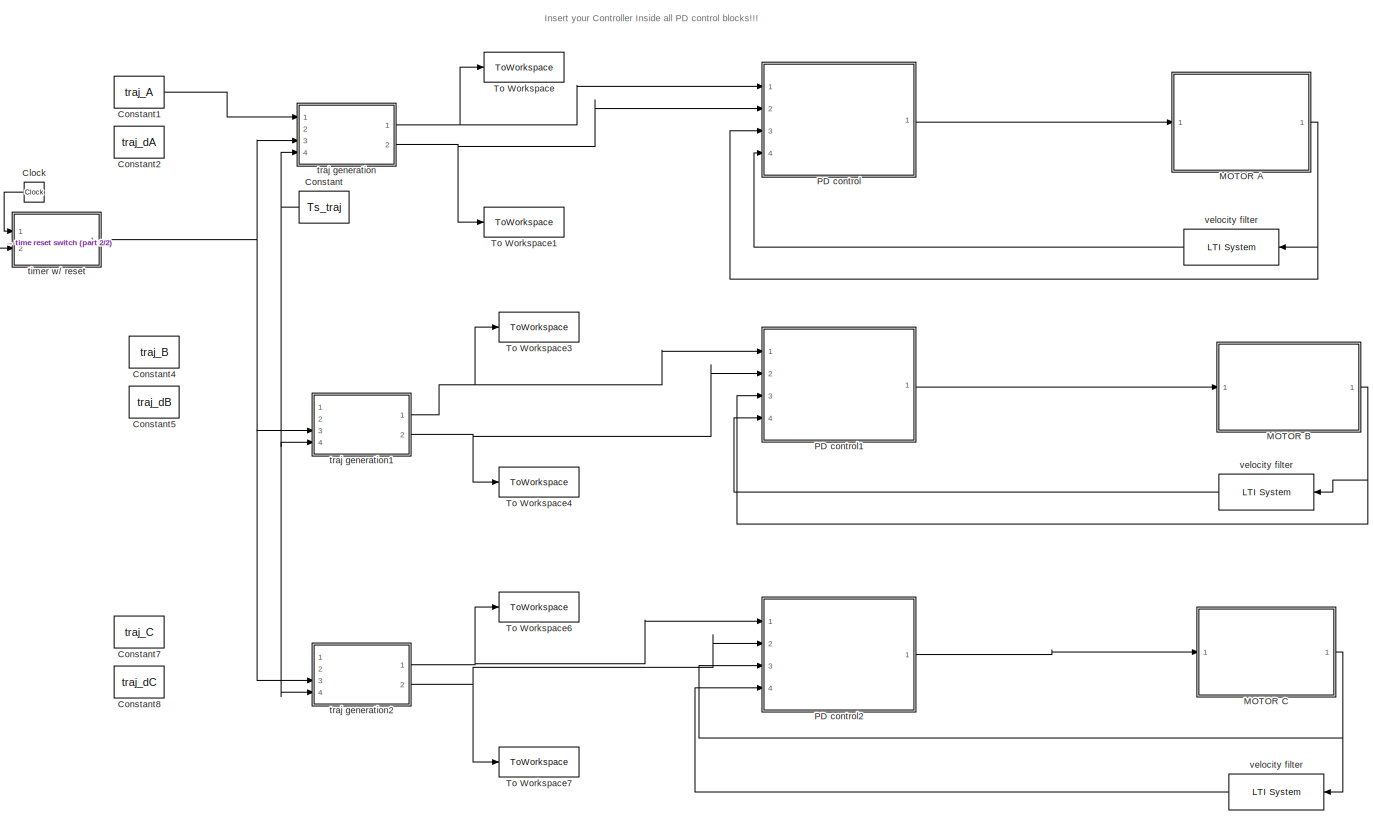
[diagram: root canvas - part 1/2, most of the canvas]
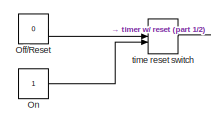
[diagram: root canvas - part 2/2, middle left region]
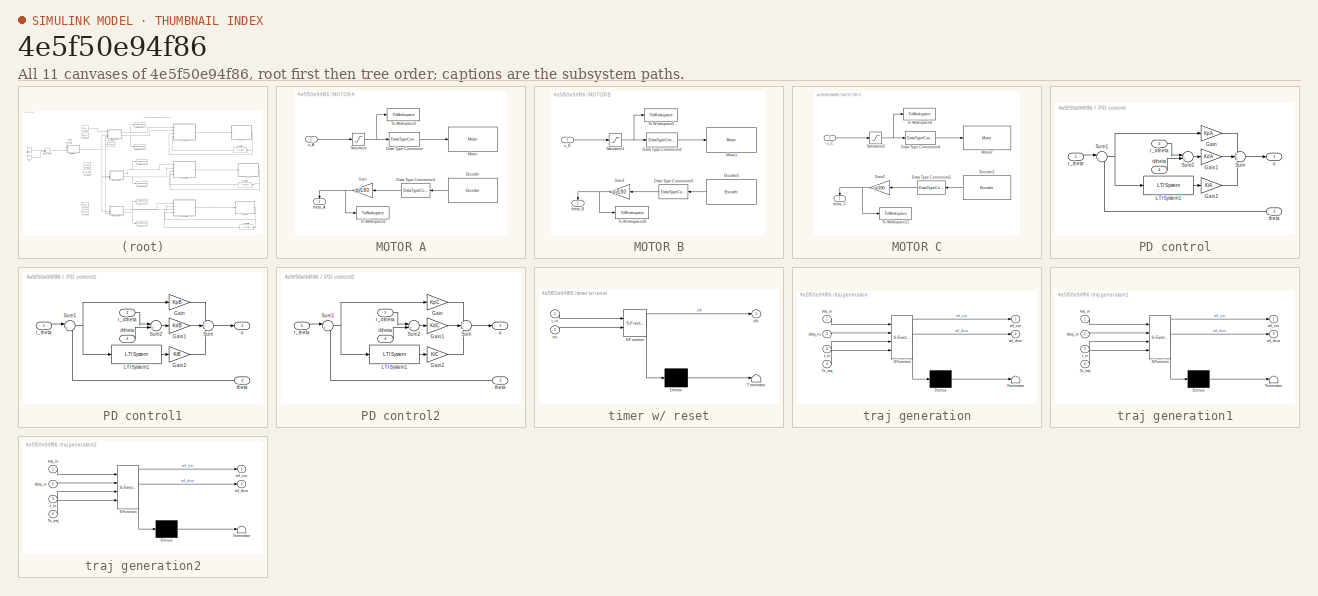
[diagram: thumbnail index - all 11 canvases of the model, root first then tree order]
MODEL slx_4e5f50e94f86
KIND model
BLOCK [Clock] Clock
BLOCK [Constant] Constant
  Value = Ts_traj
BLOCK [Constant] Constant1
  Value = traj_A
BLOCK [Constant] Constant2
  Value = traj_dA
BLOCK [Constant] Constant4
  Value = traj_B
BLOCK [Constant] Constant5
  Value = traj_dB
BLOCK [Constant] Constant7
  Value = traj_C
BLOCK [Constant] Constant8
  Value = traj_dC
BLOCK [SubSystem] MOTOR A
  Ports = [1, 1]
  RequestExecContextInheritance = off
BLOCK [DataTypeConversion] MOTOR A/Data Type Conversion
  OutDataTypeStr = int8
  RndMeth = Floor
  SaturateOnIntegerOverflow = off
BLOCK [DataTypeConversion] MOTOR A/Data Type Conversion1
  OutDataTypeStr = double
  RndMeth = Floor
  SaturateOnIntegerOverflow = off
BLOCK [Reference] MOTOR A/Encoder  REF=legonxtlib/Encoder
  Ports = [0, 1]
  SourceBlock = legonxtlib/Encoder
  SourceType = LEGO MINDSTORMS NXT Encoder
  opMode = No reset
  portNumber = A
  sampleTime = Ts
BLOCK [Gain] MOTOR A/Gain
  Gain = pi/180
  OutDataTypeStr = Inherit: Inherit via internal rule
  ParamDataTypeStr = Inherit: Inherit via internal rule
  SaturateOnIntegerOverflow = off
BLOCK [Reference] MOTOR A/Motor  REF=legonxtlib/Motor
  Ports = [1]
  SourceBlock = legonxtlib/Motor
  SourceType = LEGO MINDSTORMS NXT Motor
  sportNumber = A
  sstopAction = Brake
BLOCK [Saturate] MOTOR A/Saturation
  InputPortMap = u0
  LowerLimit = -100
  Ports = [1, 1]
  UpperLimit = 100
BLOCK [ToWorkspace] MOTOR A/To Workspace2
  FixptAsFi = on
  MaxDataPoints = inf
  Ports = [1]
  SampleTime = -1
  Save2DSignal = 3-D array (concatenate along third dimension)
  SaveFormat = Structure With Time
  VariableName = simout_u_A
BLOCK [ToWorkspace] MOTOR A/To Workspace9
  FixptAsFi = on
  MaxDataPoints = inf
  Ports = [1]
  SampleTime = -1
  Save2DSignal = 3-D array (concatenate along third dimension)
  SaveFormat = Structure With Time
  VariableName = simout_A
BLOCK [Outport] MOTOR A/theta_A
  IconDisplay = Port number
BLOCK [Inport] MOTOR A/u_A
  IconDisplay = Port number
BLOCK [SubSystem] MOTOR B
  Ports = [1, 1]
  RequestExecContextInheritance = off
BLOCK [DataTypeConversion] MOTOR B/Data Type Conversion2
  OutDataTypeStr = int8
  RndMeth = Floor
  SaturateOnIntegerOverflow = off
BLOCK [DataTypeConversion] MOTOR B/Data Type Conversion3
  OutDataTypeStr = double
  RndMeth = Floor
  SaturateOnIntegerOverflow = off
BLOCK [Reference] MOTOR B/Encoder1  REF=legonxtlib/Encoder
  Ports = [0, 1]
  SourceBlock = legonxtlib/Encoder
  SourceType = LEGO MINDSTORMS NXT Encoder
  opMode = No reset
  portNumber = B
  sampleTime = Ts
BLOCK [Gain] MOTOR B/Gain1
  Gain = pi/180
  OutDataTypeStr = Inherit: Inherit via internal rule
  ParamDataTypeStr = Inherit: Inherit via internal rule
  SaturateOnIntegerOverflow = off
BLOCK [Reference] MOTOR B/Motor1  REF=legonxtlib/Motor
  Ports = [1]
  SourceBlock = legonxtlib/Motor
  SourceType = LEGO MINDSTORMS NXT Motor
  sportNumber = B
  sstopAction = Brake
BLOCK [Saturate] MOTOR B/Saturation1
  InputPortMap = u0
  LowerLimit = -100
  Ports = [1, 1]
  UpperLimit = 100
BLOCK [ToWorkspace] MOTOR B/To Workspace10
  FixptAsFi = on
  MaxDataPoints = inf
  Ports = [1]
  SampleTime = -1
  Save2DSignal = 3-D array (concatenate along third dimension)
  SaveFormat = Structure With Time
  VariableName = simout_B
BLOCK [ToWorkspace] MOTOR B/To Workspace5
  FixptAsFi = on
  MaxDataPoints = inf
  Ports = [1]
  SampleTime = -1
  Save2DSignal = 3-D array (concatenate along third dimension)
  SaveFormat = Structure With Time
  VariableName = simout_u_B
BLOCK [Outport] MOTOR B/theta_B
  IconDisplay = Port number
BLOCK [Inport] MOTOR B/u_B
  IconDisplay = Port number
BLOCK [SubSystem] MOTOR C
  Ports = [1, 1]
  RequestExecContextInheritance = off
BLOCK [DataTypeConversion] MOTOR C/Data Type Conversion4
  OutDataTypeStr = int8
  RndMeth = Floor
  SaturateOnIntegerOverflow = off
BLOCK [DataTypeConversion] MOTOR C/Data Type Conversion5
  OutDataTypeStr = double
  RndMeth = Floor
  SaturateOnIntegerOverflow = off
BLOCK [Reference] MOTOR C/Encoder2  REF=legonxtlib/Encoder
  Ports = [0, 1]
  SourceBlock = legonxtlib/Encoder
  SourceType = LEGO MINDSTORMS NXT Encoder
  opMode = No reset
  portNumber = C
  sampleTime = Ts
BLOCK [Gain] MOTOR C/Gain2
  Gain = pi/180
  OutDataTypeStr = Inherit: Inherit via internal rule
  ParamDataTypeStr = Inherit: Inherit via internal rule
  SaturateOnIntegerOverflow = off
BLOCK [Reference] MOTOR C/Motor2  REF=legonxtlib/Motor
  Ports = [1]
  SourceBlock = legonxtlib/Motor
  SourceType = LEGO MINDSTORMS NXT Motor
  sportNumber = C
  sstopAction = Brake
BLOCK [Saturate] MOTOR C/Saturation2
  InputPortMap = u0
  LowerLimit = -100
  Ports = [1, 1]
  UpperLimit = 100
BLOCK [ToWorkspace] MOTOR C/To Workspace11
  FixptAsFi = on
  MaxDataPoints = inf
  Ports = [1]
  SampleTime = -1
  Save2DSignal = 3-D array (concatenate along third dimension)
  SaveFormat = Structure With Time
  VariableName = simout_C
BLOCK [ToWorkspace] MOTOR C/To Workspace8
  FixptAsFi = on
  MaxDataPoints = inf
  Ports = [1]
  SampleTime = -1
  Save2DSignal = 3-D array (concatenate along third dimension)
  SaveFormat = Structure With Time
  VariableName = simout_u_C
BLOCK [Outport] MOTOR C/theta_C
  IconDisplay = Port number
BLOCK [Inport] MOTOR C/u_C
  IconDisplay = Port number
BLOCK [Constant] Off//Reset
  Value = 0
BLOCK [Constant] On
BLOCK [SubSystem] PD control
  Ports = [4, 1]
  RequestExecContextInheritance = off
BLOCK [Gain] PD control/Gain
  Gain = KpA
  OutDataTypeStr = Inherit: Inherit via internal rule
  ParamDataTypeStr = Inherit: Inherit via internal rule
  SaturateOnIntegerOverflow = off
BLOCK [Gain] PD control/Gain1
  Gain = KdA
  OutDataTypeStr = Inherit: Inherit via internal rule
  ParamDataTypeStr = Inherit: Inherit via internal rule
  SaturateOnIntegerOverflow = off
BLOCK [Gain] PD control/Gain2
  Gain = KiA
  OutDataTypeStr = Inherit: Inherit via internal rule
  ParamDataTypeStr = Inherit: Inherit via internal rule
  SaturateOnIntegerOverflow = off
BLOCK [Reference] PD control/LTI System1  REF=cstblocks/LTI System
  IC = []
  Ports = [1, 1]
  SourceBlock = cstblocks/LTI System
  SourceType = LTI Block
  sys = itf
BLOCK [Sum] PD control/Sum
  IconShape = round
  InputSameDT = off
  Inputs = +++
  OutDataTypeStr = Inherit: Inherit via internal rule
  Ports = [3, 1]
  SaturateOnIntegerOverflow = off
BLOCK [Sum] PD control/Sum1
  IconShape = round
  InputSameDT = off
  Inputs = |+-
  OutDataTypeStr = Inherit: Inherit via internal rule
  Ports = [2, 1]
  SaturateOnIntegerOverflow = off
BLOCK [Sum] PD control/Sum2
  IconShape = round
  InputSameDT = off
  Inputs = |+-
  OutDataTypeStr = Inherit: Inherit via internal rule
  Ports = [2, 1]
  SaturateOnIntegerOverflow = off
BLOCK [Inport] PD control/dtheta
  IconDisplay = Port number
  Port = 4
BLOCK [Inport] PD control/r_dtheta
  IconDisplay = Port number
  Port = 2
BLOCK [Inport] PD control/r_theta
  IconDisplay = Port number
BLOCK [Inport] PD control/theta
  IconDisplay = Port number
  Port = 3
BLOCK [Outport] PD control/u
  IconDisplay = Port number
BLOCK [SubSystem] PD control1
  Ports = [4, 1]
  RequestExecContextInheritance = off
BLOCK [Gain] PD control1/Gain
  Gain = KpB
  OutDataTypeStr = Inherit: Inherit via internal rule
  ParamDataTypeStr = Inherit: Inherit via internal rule
  SaturateOnIntegerOverflow = off
BLOCK [Gain] PD control1/Gain1
  Gain = KdB
  OutDataTypeStr = Inherit: Inherit via internal rule
  ParamDataTypeStr = Inherit: Inherit via internal rule
  SaturateOnIntegerOverflow = off
BLOCK [Gain] PD control1/Gain2
  Gain = KiB
  OutDataTypeStr = Inherit: Inherit via internal rule
  ParamDataTypeStr = Inherit: Inherit via internal rule
  SaturateOnIntegerOverflow = off
BLOCK [Reference] PD control1/LTI System1  REF=cstblocks/LTI System
  IC = []
  Ports = [1, 1]
  SourceBlock = cstblocks/LTI System
  SourceType = LTI Block
  sys = itf
BLOCK [Sum] PD control1/Sum
  IconShape = round
  InputSameDT = off
  Inputs = +++
  OutDataTypeStr = Inherit: Inherit via internal rule
  Ports = [3, 1]
  SaturateOnIntegerOverflow = off
BLOCK [Sum] PD control1/Sum1
  IconShape = round
  InputSameDT = off
  Inputs = |+-
  OutDataTypeStr = Inherit: Inherit via internal rule
  Ports = [2, 1]
  SaturateOnIntegerOverflow = off
BLOCK [Sum] PD control1/Sum2
  IconShape = round
  InputSameDT = off
  Inputs = |+-
  OutDataTypeStr = Inherit: Inherit via internal rule
  Ports = [2, 1]
  SaturateOnIntegerOverflow = off
BLOCK [Inport] PD control1/dtheta
  IconDisplay = Port number
  Port = 4
BLOCK [Inport] PD control1/r_dtheta
  IconDisplay = Port number
  Port = 2
BLOCK [Inport] PD control1/r_theta
  IconDisplay = Port number
BLOCK [Inport] PD control1/theta
  IconDisplay = Port number
  Port = 3
BLOCK [Outport] PD control1/u
  IconDisplay = Port number
BLOCK [SubSystem] PD control2
  Ports = [4, 1]
  RequestExecContextInheritance = off
BLOCK [Gain] PD control2/Gain
  Gain = KpC
  OutDataTypeStr = Inherit: Inherit via internal rule
  ParamDataTypeStr = Inherit: Inherit via internal rule
  SaturateOnIntegerOverflow = off
BLOCK [Gain] PD control2/Gain1
  Gain = KdC
  OutDataTypeStr = Inherit: Inherit via internal rule
  ParamDataTypeStr = Inherit: Inherit via internal rule
  SaturateOnIntegerOverflow = off
BLOCK [Gain] PD control2/Gain2
  Gain = KiC
  OutDataTypeStr = Inherit: Inherit via internal rule
  ParamDataTypeStr = Inherit: Inherit via internal rule
  SaturateOnIntegerOverflow = off
BLOCK [Reference] PD control2/LTI System1  REF=cstblocks/LTI System
  IC = []
  Ports = [1, 1]
  SourceBlock = cstblocks/LTI System
  SourceType = LTI Block
  sys = itf
BLOCK [Sum] PD control2/Sum
  IconShape = round
  InputSameDT = off
  Inputs = +++
  OutDataTypeStr = Inherit: Inherit via internal rule
  Ports = [3, 1]
  SaturateOnIntegerOverflow = off
BLOCK [Sum] PD control2/Sum1
  IconShape = round
  InputSameDT = off
  Inputs = |+-
  OutDataTypeStr = Inherit: Inherit via internal rule
  Ports = [2, 1]
  SaturateOnIntegerOverflow = off
BLOCK [Sum] PD control2/Sum2
  IconShape = round
  InputSameDT = off
  Inputs = |+-
  OutDataTypeStr = Inherit: Inherit via internal rule
  Ports = [2, 1]
  SaturateOnIntegerOverflow = off
BLOCK [Inport] PD control2/dtheta
  IconDisplay = Port number
  Port = 4
BLOCK [Inport] PD control2/r_dtheta
  IconDisplay = Port number
  Port = 2
BLOCK [Inport] PD control2/r_theta
  IconDisplay = Port number
BLOCK [Inport] PD control2/theta
  IconDisplay = Port number
  Port = 3
BLOCK [Outport] PD control2/u
  IconDisplay = Port number
BLOCK [ToWorkspace] To Workspace
  FixptAsFi = on
  MaxDataPoints = inf
  Ports = [1]
  SampleTime = -1
  Save2DSignal = 3-D array (concatenate along third dimension)
  SaveFormat = Structure With Time
  VariableName = simout_ref_A
BLOCK [ToWorkspace] To Workspace1
  FixptAsFi = on
  MaxDataPoints = inf
  Ports = [1]
  SampleTime = -1
  Save2DSignal = 3-D array (concatenate along third dimension)
  SaveFormat = Structure With Time
  VariableName = simout_ref_dA
BLOCK [ToWorkspace] To Workspace3
  FixptAsFi = on
  MaxDataPoints = inf
  Ports = [1]
  SampleTime = -1
  Save2DSignal = 3-D array (concatenate along third dimension)
  SaveFormat = Structure With Time
  VariableName = simout_ref_B
BLOCK [ToWorkspace] To Workspace4
  FixptAsFi = on
  MaxDataPoints = inf
  Ports = [1]
  SampleTime = -1
  Save2DSignal = 3-D array (concatenate along third dimension)
  SaveFormat = Structure With Time
  VariableName = simout_ref_dB
BLOCK [ToWorkspace] To Workspace6
  FixptAsFi = on
  MaxDataPoints = inf
  Ports = [1]
  SampleTime = -1
  Save2DSignal = 3-D array (concatenate along third dimension)
  SaveFormat = Structure With Time
  VariableName = simout_ref_C
BLOCK [ToWorkspace] To Workspace7
  FixptAsFi = on
  MaxDataPoints = inf
  Ports = [1]
  SampleTime = -1
  Save2DSignal = 3-D array (concatenate along third dimension)
  SaveFormat = Structure With Time
  VariableName = simout_ref_dC
BLOCK [ManualSwitch] time reset switch
BLOCK [SubSystem] timer w// reset
  ErrorFcn = Stateflow.Translate.translate
  PermitHierarchicalResolution = ExplicitOnly
  Ports = [2, 1]
  RequestExecContextInheritance = off
  SFBlockType = MATLAB Function
  TreatAsAtomicUnit = on
BLOCK [Demux] timer w// reset/ Demux 
  Outputs = 1
  Ports = [1, 1]
BLOCK [S-Function] timer w// reset/ SFunction 
  EnableBusSupport = on
  FunctionName = sf_sfun
  PortCounts = [2 2]
  Ports = [2, 2]
  Tag = Stateflow S-Function Lab2atemplatev2 3
BLOCK [Terminator] timer w// reset/ Terminator 
BLOCK [Outport] timer w// reset/clk
  IconDisplay = Port number
BLOCK [Inport] timer w// reset/rst
  IconDisplay = Port number
  Port = 2
BLOCK [Inport] timer w// reset/t_in
  IconDisplay = Port number
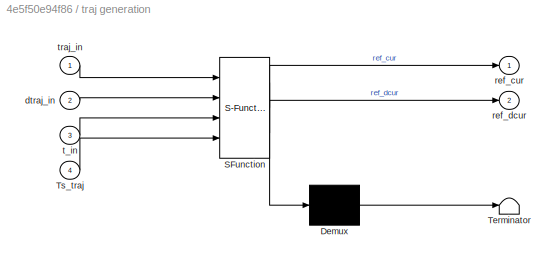
BLOCK [SubSystem] traj generation
  ErrorFcn = Stateflow.Translate.translate
  PermitHierarchicalResolution = ExplicitOnly
  Ports = [4, 2]
  RequestExecContextInheritance = off
  SFBlockType = MATLAB Function
  TreatAsAtomicUnit = on
BLOCK [Demux] traj generation/ Demux 
  Outputs = 1
  Ports = [1, 1]
BLOCK [S-Function] traj generation/ SFunction 
  EnableBusSupport = on
  FunctionName = sf_sfun
  PortCounts = [4 3]
  Ports = [4, 3]
  Tag = Stateflow S-Function Lab2atemplatev2 4
BLOCK [Terminator] traj generation/ Terminator 
BLOCK [Inport] traj generation/Ts_traj
  IconDisplay = Port number
  Port = 4
BLOCK [Inport] traj generation/dtraj_in
  IconDisplay = Port number
  Port = 2
BLOCK [Outport] traj generation/ref_cur
  IconDisplay = Port number
BLOCK [Outport] traj generation/ref_dcur
  IconDisplay = Port number
  Port = 2
BLOCK [Inport] traj generation/t_in
  IconDisplay = Port number
  Port = 3
BLOCK [Inport] traj generation/traj_in
  IconDisplay = Port number
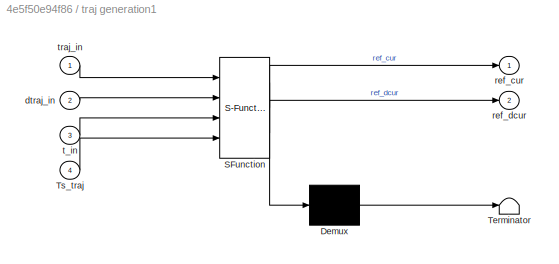
BLOCK [SubSystem] traj generation1
  ErrorFcn = Stateflow.Translate.translate
  PermitHierarchicalResolution = ExplicitOnly
  Ports = [4, 2]
  RequestExecContextInheritance = off
  SFBlockType = MATLAB Function
  TreatAsAtomicUnit = on
BLOCK [Demux] traj generation1/ Demux 
  Outputs = 1
  Ports = [1, 1]
BLOCK [S-Function] traj generation1/ SFunction 
  EnableBusSupport = on
  FunctionName = sf_sfun
  PortCounts = [4 3]
  Ports = [4, 3]
  Tag = Stateflow S-Function Lab2atemplatev2 1
BLOCK [Terminator] traj generation1/ Terminator 
BLOCK [Inport] traj generation1/Ts_traj
  IconDisplay = Port number
  Port = 4
BLOCK [Inport] traj generation1/dtraj_in
  IconDisplay = Port number
  Port = 2
BLOCK [Outport] traj generation1/ref_cur
  IconDisplay = Port number
BLOCK [Outport] traj generation1/ref_dcur
  IconDisplay = Port number
  Port = 2
BLOCK [Inport] traj generation1/t_in
  IconDisplay = Port number
  Port = 3
BLOCK [Inport] traj generation1/traj_in
  IconDisplay = Port number
BLOCK [SubSystem] traj generation2
  ErrorFcn = Stateflow.Translate.translate
  PermitHierarchicalResolution = ExplicitOnly
  Ports = [4, 2]
  RequestExecContextInheritance = off
  SFBlockType = MATLAB Function
  TreatAsAtomicUnit = on
BLOCK [Demux] traj generation2/ Demux 
  Outputs = 1
  Ports = [1, 1]
BLOCK [S-Function] traj generation2/ SFunction 
  EnableBusSupport = on
  FunctionName = sf_sfun
  PortCounts = [4 3]
  Ports = [4, 3]
  Tag = Stateflow S-Function Lab2atemplatev2 2
BLOCK [Terminator] traj generation2/ Terminator 
BLOCK [Inport] traj generation2/Ts_traj
  IconDisplay = Port number
  Port = 4
BLOCK [Inport] traj generation2/dtraj_in
  IconDisplay = Port number
  Port = 2
BLOCK [Outport] traj generation2/ref_cur
  IconDisplay = Port number
BLOCK [Outport] traj generation2/ref_dcur
  IconDisplay = Port number
  Port = 2
BLOCK [Inport] traj generation2/t_in
  IconDisplay = Port number
  Port = 3
BLOCK [Inport] traj generation2/traj_in
  IconDisplay = Port number
BLOCK [Reference] velocity filter  REF=cstblocks/LTI System
  IC = []
  Ports = [1, 1]
  SourceBlock = cstblocks/LTI System
  SourceType = LTI Block
  sys = dttf
BLOCK [Reference] velocity filter    REF=cstblocks/LTI System
  IC = []
  Ports = [1, 1]
  SourceBlock = cstblocks/LTI System
  SourceType = LTI Block
  sys = dttf
BLOCK [Reference] velocity filter       REF=cstblocks/LTI System
  IC = []
  Ports = [1, 1]
  SourceBlock = cstblocks/LTI System
  SourceType = LTI Block
  sys = dttf
ANNOTATION (root): Insert your Controller Inside all PD control blocks!!!
LINE Clock:1 -> timer w// reset:1
LINE Constant1:1 -> traj generation:1
NET Constant:1 -> traj generation1:4, traj generation2:4, traj generation:4
LINE MOTOR A/Data Type Conversion1:1 -> MOTOR A/Gain:1
LINE MOTOR A/Data Type Conversion:1 -> MOTOR A/Motor:1
LINE MOTOR A/Encoder:1 -> MOTOR A/Data Type Conversion1:1
NET MOTOR A/Gain:1 -> MOTOR A/To Workspace9:1, MOTOR A/theta_A:1
NET MOTOR A/Saturation:1 -> MOTOR A/Data Type Conversion:1, MOTOR A/To Workspace2:1
LINE MOTOR A/u_A:1 -> MOTOR A/Saturation:1
NET MOTOR A:1 -> PD control:3, velocity filter:1
LINE MOTOR B/Data Type Conversion2:1 -> MOTOR B/Motor1:1
LINE MOTOR B/Data Type Conversion3:1 -> MOTOR B/Gain1:1
LINE MOTOR B/Encoder1:1 -> MOTOR B/Data Type Conversion3:1
NET MOTOR B/Gain1:1 -> MOTOR B/To Workspace10:1, MOTOR B/theta_B:1
NET MOTOR B/Saturation1:1 -> MOTOR B/Data Type Conversion2:1, MOTOR B/To Workspace5:1
LINE MOTOR B/u_B:1 -> MOTOR B/Saturation1:1
NET MOTOR B:1 -> PD control1:3, velocity filter  :1
LINE MOTOR C/Data Type Conversion4:1 -> MOTOR C/Motor2:1
LINE MOTOR C/Data Type Conversion5:1 -> MOTOR C/Gain2:1
LINE MOTOR C/Encoder2:1 -> MOTOR C/Data Type Conversion5:1
NET MOTOR C/Gain2:1 -> MOTOR C/To Workspace11:1, MOTOR C/theta_C:1
NET MOTOR C/Saturation2:1 -> MOTOR C/Data Type Conversion4:1, MOTOR C/To Workspace8:1
LINE MOTOR C/u_C:1 -> MOTOR C/Saturation2:1
NET MOTOR C:1 -> PD control2:3, velocity filter     :1
LINE Off//Reset:1 -> time reset switch:1
LINE On:1 -> time reset switch:2
LINE PD control/Gain1:1 -> PD control/Sum:2
LINE PD control/Gain2:1 -> PD control/Sum:3
LINE PD control/Gain:1 -> PD control/Sum:1
LINE PD control/LTI System1:1 -> PD control/Gain2:1
NET PD control/Sum1:1 -> PD control/Gain:1, PD control/LTI System1:1
LINE PD control/Sum2:1 -> PD control/Gain1:1
LINE PD control/Sum:1 -> PD control/u:1
LINE PD control/dtheta:1 -> PD control/Sum2:2
LINE PD control/r_dtheta:1 -> PD control/Sum2:1
LINE PD control/r_theta:1 -> PD control/Sum1:1
LINE PD control/theta:1 -> PD control/Sum1:2
LINE PD control1/Gain1:1 -> PD control1/Sum:2
LINE PD control1/Gain2:1 -> PD control1/Sum:3
LINE PD control1/Gain:1 -> PD control1/Sum:1
LINE PD control1/LTI System1:1 -> PD control1/Gain2:1
NET PD control1/Sum1:1 -> PD control1/Gain:1, PD control1/LTI System1:1
LINE PD control1/Sum2:1 -> PD control1/Gain1:1
LINE PD control1/Sum:1 -> PD control1/u:1
LINE PD control1/dtheta:1 -> PD control1/Sum2:2
LINE PD control1/r_dtheta:1 -> PD control1/Sum2:1
LINE PD control1/r_theta:1 -> PD control1/Sum1:1
LINE PD control1/theta:1 -> PD control1/Sum1:2
LINE PD control1:1 -> MOTOR B:1
LINE PD control2/Gain1:1 -> PD control2/Sum:2
LINE PD control2/Gain2:1 -> PD control2/Sum:3
LINE PD control2/Gain:1 -> PD control2/Sum:1
LINE PD control2/LTI System1:1 -> PD control2/Gain2:1
NET PD control2/Sum1:1 -> PD control2/Gain:1, PD control2/LTI System1:1
LINE PD control2/Sum2:1 -> PD control2/Gain1:1
LINE PD control2/Sum:1 -> PD control2/u:1
LINE PD control2/dtheta:1 -> PD control2/Sum2:2
LINE PD control2/r_dtheta:1 -> PD control2/Sum2:1
LINE PD control2/r_theta:1 -> PD control2/Sum1:1
LINE PD control2/theta:1 -> PD control2/Sum1:2
LINE PD control2:1 -> MOTOR C:1
LINE PD control:1 -> MOTOR A:1
LINE time reset switch:1 -> timer w// reset:2
NET timer w// reset:1 -> traj generation1:3, traj generation2:3, traj generation:3
NET traj generation1:1 -> PD control1:1, To Workspace3:1
NET traj generation1:2 -> PD control1:2, To Workspace4:1
NET traj generation2:1 -> PD control2:1, To Workspace6:1
NET traj generation2:2 -> PD control2:2, To Workspace7:1
NET traj generation:1 -> PD control:1, To Workspace:1
NET traj generation:2 -> PD control:2, To Workspace1:1
LINE velocity filter     :1 -> PD control2:4
LINE velocity filter  :1 -> PD control1:4
LINE velocity filter:1 -> PD control:4
note: NET lines group one-source signal fan-out (src -> all destinations, sorted); 1:1 wires keep LINE
